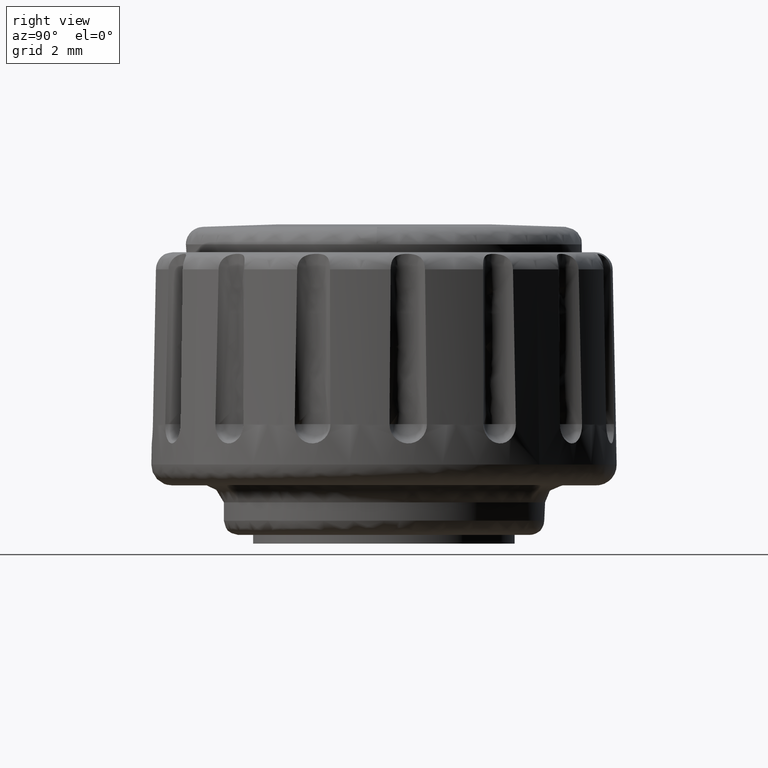
[diagram: clean part render]
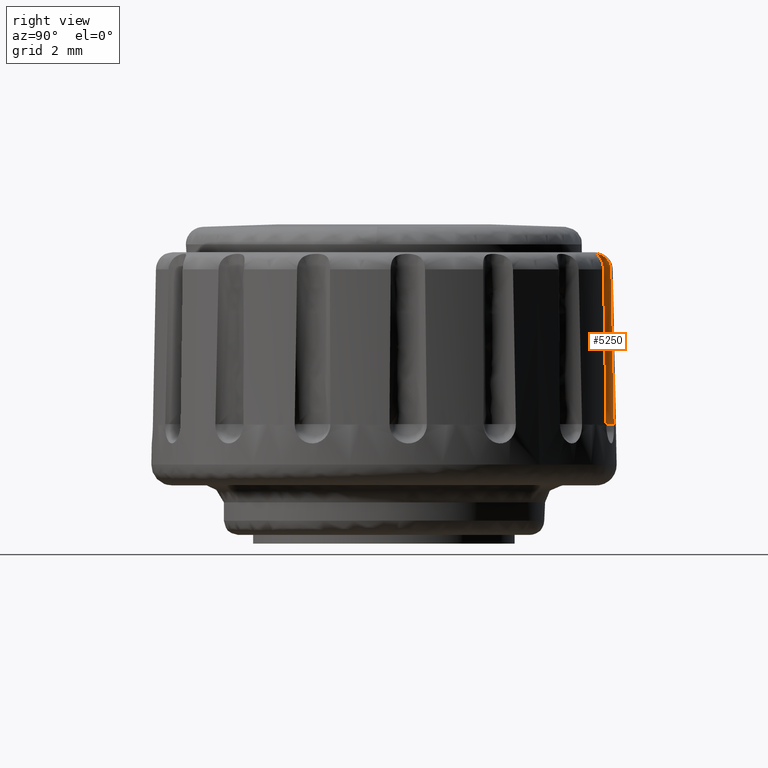
[diagram: same view with one face highlighted and labeled with its STEP entity id]
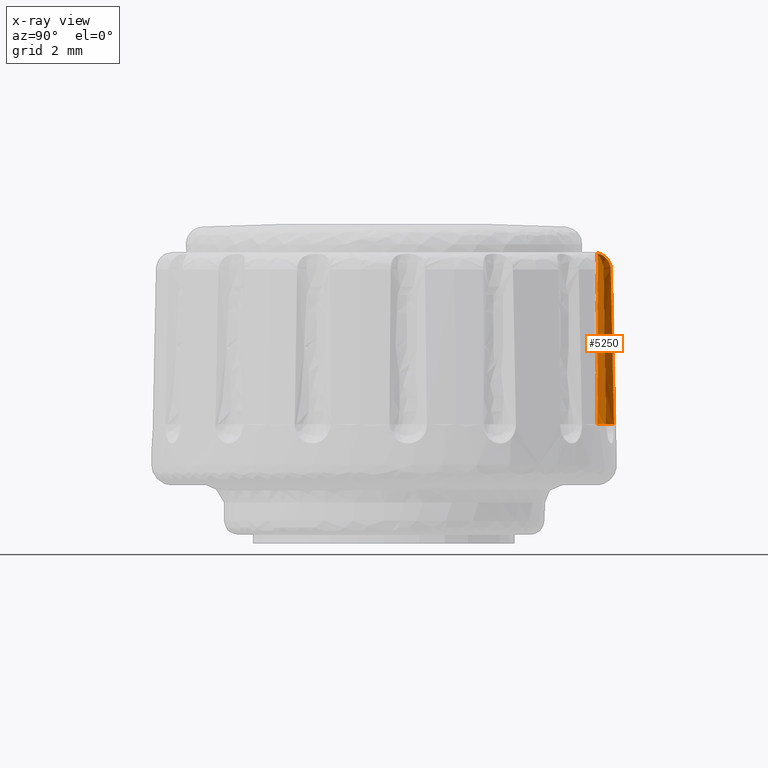
[diagram: x-ray of the same camera — body ghosted, the highlighted face saturated]
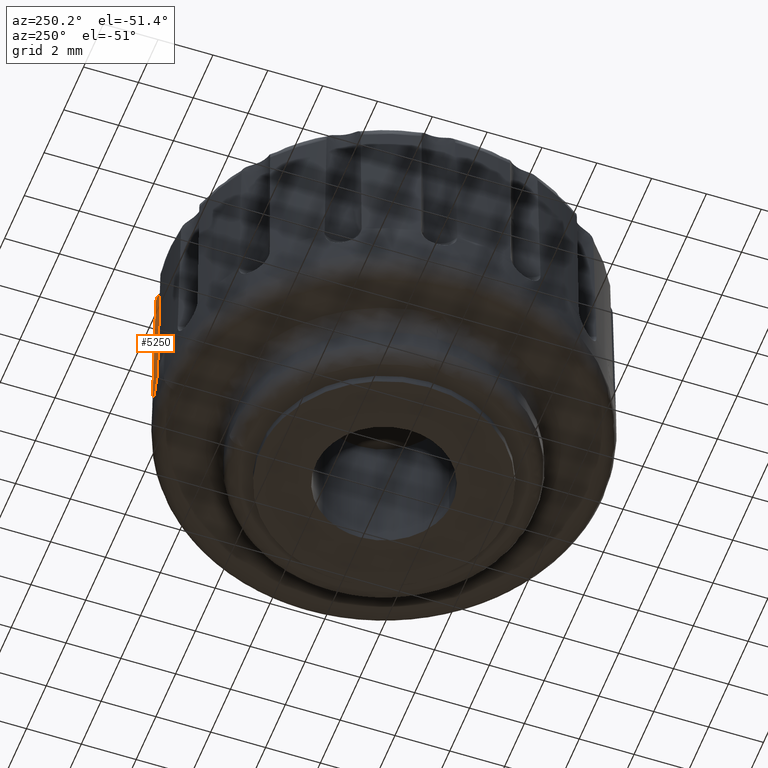
[diagram: same view with one face highlighted and labeled with its STEP entity id]
A machine part, right view. The second image highlights one B-rep face of the part: STEP entity #5250.
The next image is the same camera in x-ray: the body ghosted, the highlighted face saturated — about 0% of this face is hidden behind the body in this view.
A second angle (auxiliary view) of the same face is appended — the face is thin or edge-on in the first view.
In plain terms, the highlighted face is a freeform B-spline surface patch.
Its self-contained STEP definition (entity closure, byte-faithful):
#2275=CARTESIAN_POINT('',(1.048070158388030,7.778718392456789,9.412215999999900));
#2276=VERTEX_POINT('',#2275);
#2290=CARTESIAN_POINT('',(1.016830934092620,7.891985686210480,4.099998000000050));
#2291=VERTEX_POINT('',#2290);
#2292=CARTESIAN_POINT('',(1.016830934092620,7.891985686210474,4.099998000000050));
#2293=CARTESIAN_POINT('',(1.023808863453054,7.854716154987616,5.870766696366896));
#2294=CARTESIAN_POINT('',(1.033953726924858,7.817017298919793,7.641511528857085));
#2295=CARTESIAN_POINT('',(1.048070158388030,7.778718392456789,9.412215999999900));
#2296=QUASI_UNIFORM_CURVE('',3,(#2292,#2293,#2294,#2295),.UNSPECIFIED.,.F.,.U.);
#2297=EDGE_CURVE('',#2291,#2276,#2296,.T.);
#2299=CARTESIAN_POINT('',(2.281038484180710,7.623270076126470,4.099997999999999));
#2300=VERTEX_POINT('',#2299);
#2347=CARTESIAN_POINT('',(2.206430073893710,7.532501391640530,9.412215999999900));
#2348=VERTEX_POINT('',#2347);
#2349=CARTESIAN_POINT('',(2.206430073893710,7.532501391640524,9.412215999999900));
#2350=CARTESIAN_POINT('',(2.234903641496545,7.561747510761935,7.641511708373157));
#2351=CARTESIAN_POINT('',(2.259504946040823,7.592060846979030,5.870766568932624));
#2352=CARTESIAN_POINT('',(2.281038484180720,7.623270076126471,4.099998000000001));
#2353=QUASI_UNIFORM_CURVE('',3,(#2349,#2350,#2351,#2352),.UNSPECIFIED.,.F.,.U.);
#2354=EDGE_CURVE('',#2348,#2300,#2353,.T.);
#3757=CARTESIAN_POINT('',(1.048070158388027,7.778718392456793,9.412215999999900));
#3758=CARTESIAN_POINT('',(1.048402604954796,7.777816440713687,9.453916978650055));
#3759=CARTESIAN_POINT('',(1.050359629334463,7.772371570593778,9.494705356962383));
#3760=CARTESIAN_POINT('',(1.056190669117031,7.757679880657141,9.554538196299598));
#3761=CARTESIAN_POINT('',(1.058649108868997,7.751640450220563,9.574371121964864));
#3762=CARTESIAN_POINT('',(1.064714129803928,7.737518126196007,9.612979769021209));
#3763=CARTESIAN_POINT('',(1.071878177861213,7.721467786040119,9.650306229437664));
#3764=CARTESIAN_POINT('',(1.081653500585064,7.701839399002258,9.685106089512372));
#3765=CARTESIAN_POINT('',(1.093029927931416,7.680526285888730,9.718620688036364));
#3766=CARTESIAN_POINT('',(1.099579897758076,7.668931225431532,9.734842281239375));
#3767=CARTESIAN_POINT('',(1.121598448941423,7.632754123148187,9.780309983706943));
#3768=CARTESIAN_POINT('',(1.139442282509628,7.606693560812030,9.806636376722523));
#3769=CARTESIAN_POINT('',(1.172246918737520,7.566265595706400,9.840786535082376));
#3770=CARTESIAN_POINT('',(1.184185720534469,7.552596317950981,9.851235461969333));
#3771=CARTESIAN_POINT('',(1.209526315620616,7.525864335950607,9.869958542599813));
#3772=CARTESIAN_POINT('',(1.223004294961750,7.512702946877758,9.878318822856285));
#3773=CARTESIAN_POINT('',(1.265934510858000,7.474172251138062,9.900807544248762));
#3774=CARTESIAN_POINT('',(1.298126364552101,7.449683295253598,9.912355600197692));
#3775=CARTESIAN_POINT('',(1.349353168495497,7.417474231993787,9.925299691225185));
#3776=CARTESIAN_POINT('',(1.366993982053678,7.407411033357886,9.928924707190694));
#3777=CARTESIAN_POINT('',(1.403407546522510,7.388718737503858,9.935012990686721));
#3778=CARTESIAN_POINT('',(1.422278720718148,7.380053911721161,9.937483331904758));
#3779=CARTESIAN_POINT('',(1.479631906984181,7.356752648871717,9.943261753614445));
#3780=CARTESIAN_POINT('',(1.518957923390817,7.344685122009781,9.945034975578093));
#3781=CARTESIAN_POINT('',(1.579570387784840,7.331804244366468,9.945033646851440));
#3782=CARTESIAN_POINT('',(1.600157349337196,7.328374272839345,9.944571324500885));
#3783=CARTESIAN_POINT('',(1.641303682651654,7.323392079352050,9.942692276019685));
#3784=CARTESIAN_POINT('',(1.661817519081243,7.321833380731013,9.941283351151188));
#3785=CARTESIAN_POINT('',(1.723167231192207,7.319850942079221,9.935529924069954));
#3786=CARTESIAN_POINT('',(1.763817723085023,7.322106697870186,9.929712001450541));
#3787=CARTESIAN_POINT('',(1.844404978171463,7.333647782737262,9.912308955185344));
#3788=CARTESIAN_POINT('',(1.883051810815606,7.342786718797871,9.900945160164985));
#3789=CARTESIAN_POINT('',(1.937588482748904,7.360345978780638,9.878688632862497));
#3790=CARTESIAN_POINT('',(1.955232576751350,7.366848293417349,9.870385579118487));
#3791=CARTESIAN_POINT('',(1.989378315718970,7.380964209145816,9.851679695909553));
#3792=CARTESIAN_POINT('',(2.005923270508536,7.388613375496020,9.841217255451333));
#3793=CARTESIAN_POINT('',(2.052208400035450,7.412073922129385,9.807307234463059));
#3794=CARTESIAN_POINT('',(2.079177995755029,7.428605802535165,9.781090340372817));
#3795=CARTESIAN_POINT('',(2.114208683135868,7.452786747847359,9.735580212510056));
#3796=CARTESIAN_POINT('',(2.124929780564403,7.460717124220874,9.719398916058831));
#3797=CARTESIAN_POINT('',(2.144069207081110,7.475595887706752,9.685907587720944));
#3798=CARTESIAN_POINT('',(2.152580628659937,7.482607773875572,9.668484688392210));
#3799=CARTESIAN_POINT('',(2.175248276526541,7.502015546947942,9.614197892450918));
#3800=CARTESIAN_POINT('',(2.186549769645900,7.512770367201745,9.575022528015017));
#3801=CARTESIAN_POINT('',(2.201685694601907,7.527561668966844,9.495266763563880));
#3802=CARTESIAN_POINT('',(2.205758659340970,7.531811760110567,9.453970005060402));
#3803=CARTESIAN_POINT('',(2.206430073893710,7.532501391640530,9.412215999999900));
#3804=B_SPLINE_CURVE_WITH_KNOTS('',3,(#3757,#3758,#3759,#3760,#3761,#3762,#3763,#3764,#3765,#3766,#3767,#3768,#3769,#3770,#3771,#3772,#3773,#3774,#3775,#3776,#3777,#3778,#3779,#3780,#3781,#3782,#3783,#3784,#3785,#3786,#3787,#3788,#3789,#3790,#3791,#3792,#3793,#3794,#3795,#3796,#3797,#3798,#3799,#3800,#3801,#3802,#3803),.UNSPECIFIED.,.F.,.U.,(4,2,2,1,2,2,2,2,2,2,2,2,2,2,2,2,2,2,2,2,2,2,2,4),(0.0,0.062499999999996,0.093749999999996,0.124999999999995,0.156249999999995,0.187499999999994,0.249999999999993,0.281249999999993,0.312499999999993,0.374999999999994,0.406249999999995,0.437499999999996,0.499999999999998,0.531249999999998,0.562499999999999,0.625000000000000,0.687500000000002,0.718750000000002,0.750000000000002,0.812500000000002,0.843750000000001,0.875000000000001,0.937500000000000,1.0),.UNSPECIFIED.);
#3805=EDGE_CURVE('',#2276,#2348,#3804,.T.);
#4757=CARTESIAN_POINT('',(1.016830934092620,7.891985686210480,4.099998000000050));
#4758=CARTESIAN_POINT('',(1.102736790398877,7.433157453871713,4.099998000000050));
#4759=CARTESIAN_POINT('',(1.559337057398117,7.336104071060738,4.099998000000050));
#4760=CARTESIAN_POINT('',(2.015937324397356,7.239050688249764,4.099998000000050));
#4761=CARTESIAN_POINT('',(2.281038484180710,7.623270076126470,4.099997999999999));
#4769=(BOUNDED_CURVE()B_SPLINE_CURVE(2,(#4757,#4758,#4759,#4760,#4761),.UNSPECIFIED.,.F.,.U.)B_SPLINE_CURVE_WITH_KNOTS((3,2,3),(0.0,0.500000000000000,1.0),.UNSPECIFIED.)CURVE()GEOMETRIC_REPRESENTATION_ITEM()RATIONAL_B_SPLINE_CURVE((1.0,0.831976603905544,1.0,0.831976603905544,1.0))REPRESENTATION_ITEM(''));
#4770=EDGE_CURVE('',#2291,#2300,#4769,.T.);
#5226=CARTESIAN_POINT('',(1.015732965526721,7.897994834414712,10.091159992344210));
#5227=CARTESIAN_POINT('',(1.015732965526721,7.897994834414712,3.950218950191394));
#5228=CARTESIAN_POINT('',(1.100139697539748,7.424360470734781,10.091159992344210));
#5229=CARTESIAN_POINT('',(1.100139697539748,7.424360470734781,3.950218950191394));
#5230=CARTESIAN_POINT('',(1.572564136267117,7.333425567860568,10.091159992344210));
#5231=CARTESIAN_POINT('',(1.572564136267117,7.333425567860568,3.950218950191394));
#5232=CARTESIAN_POINT('',(2.044988574994485,7.242490664986354,10.091159992344210));
#5233=CARTESIAN_POINT('',(2.044988574994485,7.242490664986354,3.950218950191394));
#5234=CARTESIAN_POINT('',(2.299185397825092,7.650948719296019,10.091159992344210));
#5235=CARTESIAN_POINT('',(2.299185397825092,7.650948719296019,3.950218950191394));
#5243=(BOUNDED_SURFACE()B_SPLINE_SURFACE(1,2,((#5226,#5228,#5230,#5232,#5234),(#5227,#5229,#5231,#5233,#5235)),.UNSPECIFIED.,.F.,.F.,.U.)B_SPLINE_SURFACE_WITH_KNOTS((2,2),(3,2,3),(0.0,6.140941042152816),(0.0,1.0,2.0),.UNSPECIFIED.)GEOMETRIC_REPRESENTATION_ITEM()RATIONAL_B_SPLINE_SURFACE(((1.0,0.824126188622016,1.0,0.824126188622016,1.0),(1.0,0.824126188622016,1.0,0.824126188622016,1.0)))REPRESENTATION_ITEM('')SURFACE());
#5244=ORIENTED_EDGE('',*,*,#2354,.T.);
#5245=ORIENTED_EDGE('',*,*,#4770,.F.);
#5246=ORIENTED_EDGE('',*,*,#2297,.T.);
#5247=ORIENTED_EDGE('',*,*,#3805,.T.);
#5248=EDGE_LOOP('',(#5244,#5245,#5246,#5247));
#5249=FACE_OUTER_BOUND('',#5248,.T.);
#5250=ADVANCED_FACE('',(#5249),#5243,.F.);